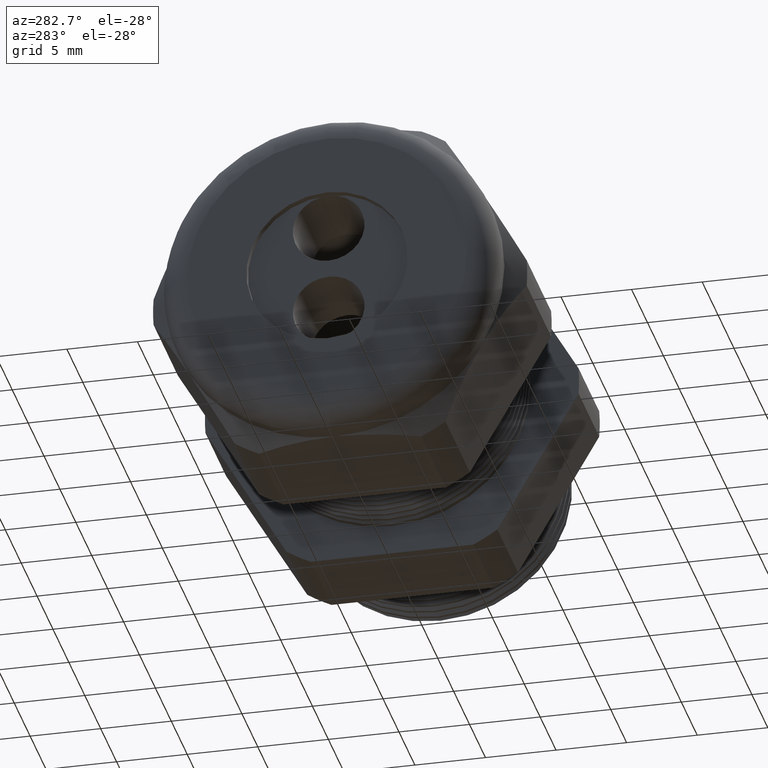
[diagram: clean part render]
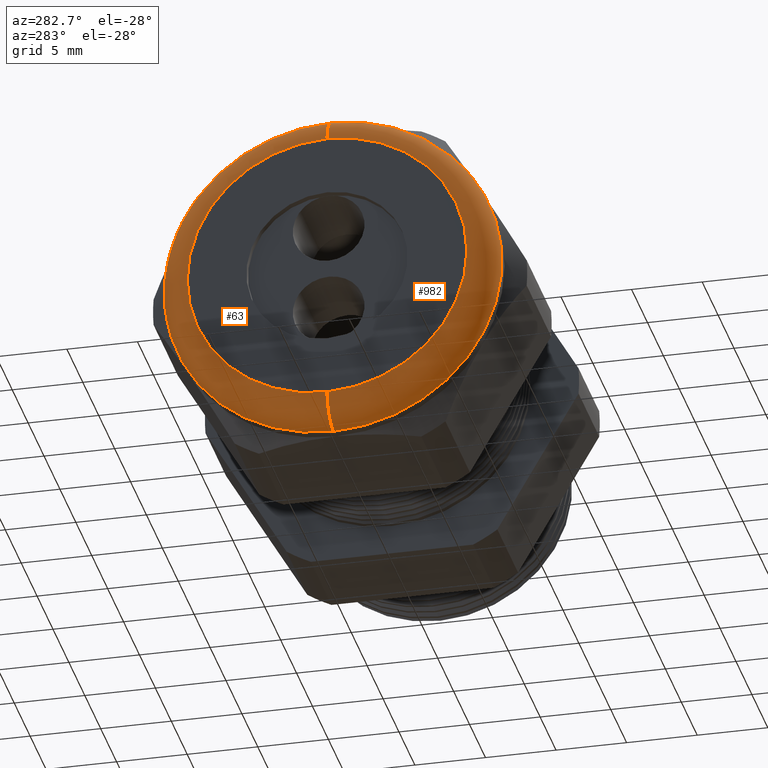
[diagram: same view with one multi-face feature highlighted, each face labeled with its STEP entity id]
A machine part, auxiliary view. The highlighted faces form ONE feature: a constant-radius fillet chain: 2 tangent blend faces with common blend radius 2.032 mm. The faces share edges in the B-rep.
Their STEP definitions:
[1] entity #982 (Torus):
#43 = VERTEX_POINT ( 'NONE', #1557 ) ;
#51 = EDGE_CURVE ( 'NONE', #55, #53, #1541, .T. ) ;
#53 = VERTEX_POINT ( 'NONE', #1593 ) ;
#55 = VERTEX_POINT ( 'NONE', #1592 ) ;
#58 = EDGE_CURVE ( 'NONE', #59, #43, #1586, .T. ) ;
#59 = VERTEX_POINT ( 'NONE', #1581 ) ;
#710 = EDGE_CURVE ( 'NONE', #55, #59, #2927, .T. ) ;
#765 = EDGE_CURVE ( 'NONE', #43, #53, #3015, .T. ) ;
#982 = ADVANCED_FACE ( 'NONE', ( #3413 ), #3410, .T. ) ;
#983 = EDGE_LOOP ( 'NONE', ( #984, #1038, #1039, #1040 ) ) ;
#984 = ORIENTED_EDGE ( 'NONE', *, *, #58, .F. ) ;
#1038 = ORIENTED_EDGE ( 'NONE', *, *, #710, .F. ) ;
#1039 = ORIENTED_EDGE ( 'NONE', *, *, #51, .T. ) ;
#1040 = ORIENTED_EDGE ( 'NONE', *, *, #765, .F. ) ;
#1541 = CIRCLE ( 'NONE', #1603, 0.07999999999999996000 ) ;
#1557 = CARTESIAN_POINT ( 'NONE',  ( -1.370000000000000100, 5.265981236333617600E-017, -0.3899999999999999600 ) ) ;
#1581 = CARTESIAN_POINT ( 'NONE',  ( -1.290000000000000300, 0.0000000000000000000, -0.4699999999999999200 ) ) ;
#1582 = DIRECTION ( 'NONE',  ( 0.0000000000000000000, -1.224646799147353900E-016, 1.000000000000000000 ) ) ;
#1583 = DIRECTION ( 'NONE',  ( 0.0000000000000000000, 1.000000000000000000, 1.224646799147353200E-016 ) ) ;
#1584 = CARTESIAN_POINT ( 'NONE',  ( -1.290000000000000300, 4.776122516674676800E-017, -0.3899999999999999600 ) ) ;
#1585 = AXIS2_PLACEMENT_3D ( 'NONE', #1584, #1583, #1582 ) ;
#1586 = CIRCLE ( 'NONE', #1585, 0.07999999999999996000 ) ;
#1592 = CARTESIAN_POINT ( 'NONE',  ( -1.290000000000000300, 5.755839955992558400E-017, 0.4699999999999999200 ) ) ;
#1593 = CARTESIAN_POINT ( 'NONE',  ( -1.370000000000000100, 0.0000000000000000000, 0.3899999999999999600 ) ) ;
#1600 = DIRECTION ( 'NONE',  ( 0.0000000000000000000, 0.0000000000000000000, -1.000000000000000000 ) ) ;
#1601 = DIRECTION ( 'NONE',  ( 0.0000000000000000000, -1.000000000000000000, 0.0000000000000000000 ) ) ;
#1602 = CARTESIAN_POINT ( 'NONE',  ( -1.290000000000000300, 0.0000000000000000000, 0.3899999999999999600 ) ) ;
#1603 = AXIS2_PLACEMENT_3D ( 'NONE', #1602, #1601, #1600 ) ;
#2923 = DIRECTION ( 'NONE',  ( 0.0000000000000000000, 0.0000000000000000000, 1.000000000000000000 ) ) ;
#2924 = DIRECTION ( 'NONE',  ( 1.000000000000000000, 0.0000000000000000000, 0.0000000000000000000 ) ) ;
#2925 = CARTESIAN_POINT ( 'NONE',  ( -1.290000000000000300, 0.0000000000000000000, 0.0000000000000000000 ) ) ;
#2926 = AXIS2_PLACEMENT_3D ( 'NONE', #2925, #2924, #2923 ) ;
#2927 = CIRCLE ( 'NONE', #2926, 0.4699999999999999200 ) ;
#3014 = AXIS2_PLACEMENT_3D ( 'NONE', #3077, #3076, #3075 ) ;
#3015 = CIRCLE ( 'NONE', #3014, 0.3899999999999999600 ) ;
#3075 = DIRECTION ( 'NONE',  ( 0.0000000000000000000, 0.0000000000000000000, 1.000000000000000000 ) ) ;
#3076 = DIRECTION ( 'NONE',  ( -1.000000000000000000, 0.0000000000000000000, 0.0000000000000000000 ) ) ;
#3077 = CARTESIAN_POINT ( 'NONE',  ( -1.370000000000000100, 0.0000000000000000000, 0.0000000000000000000 ) ) ;
#3407 = DIRECTION ( 'NONE',  ( 0.0000000000000000000, 0.0000000000000000000, 1.000000000000000000 ) ) ;
#3408 = DIRECTION ( 'NONE',  ( -1.000000000000000000, 0.0000000000000000000, 0.0000000000000000000 ) ) ;
#3409 = AXIS2_PLACEMENT_3D ( 'NONE', #3412, #3408, #3407 ) ;
#3410 = TOROIDAL_SURFACE ( 'NONE', #3409, 0.3899999999999999600, 0.08000000000000000200 ) ;
#3412 = CARTESIAN_POINT ( 'NONE',  ( -1.290000000000000300, 0.0000000000000000000, 0.0000000000000000000 ) ) ;
#3413 = FACE_OUTER_BOUND ( 'NONE', #983, .T. ) ;
[2] entity #63 (Torus):
#34 = EDGE_LOOP ( 'NONE', ( #61, #54, #56, #50 ) ) ;
#43 = VERTEX_POINT ( 'NONE', #1557 ) ;
#50 = ORIENTED_EDGE ( 'NONE', *, *, #51, .F. ) ;
#51 = EDGE_CURVE ( 'NONE', #55, #53, #1541, .T. ) ;
#53 = VERTEX_POINT ( 'NONE', #1593 ) ;
#54 = ORIENTED_EDGE ( 'NONE', *, *, #58, .T. ) ;
#55 = VERTEX_POINT ( 'NONE', #1592 ) ;
#56 = ORIENTED_EDGE ( 'NONE', *, *, #57, .F. ) ;
#57 = EDGE_CURVE ( 'NONE', #53, #43, #1591, .T. ) ;
#58 = EDGE_CURVE ( 'NONE', #59, #43, #1586, .T. ) ;
#59 = VERTEX_POINT ( 'NONE', #1581 ) ;
#60 = EDGE_CURVE ( 'NONE', #59, #55, #1579, .T. ) ;
#61 = ORIENTED_EDGE ( 'NONE', *, *, #60, .F. ) ;
#63 = ADVANCED_FACE ( 'NONE', ( #1580 ), #1573, .T. ) ;
#1541 = CIRCLE ( 'NONE', #1603, 0.07999999999999996000 ) ;
#1557 = CARTESIAN_POINT ( 'NONE',  ( -1.370000000000000100, 5.265981236333617600E-017, -0.3899999999999999600 ) ) ;
#1570 = DIRECTION ( 'NONE',  ( 0.0000000000000000000, 0.0000000000000000000, 1.000000000000000000 ) ) ;
#1571 = DIRECTION ( 'NONE',  ( -1.000000000000000000, 0.0000000000000000000, 0.0000000000000000000 ) ) ;
#1572 = AXIS2_PLACEMENT_3D ( 'NONE', #1574, #1571, #1570 ) ;
#1573 = TOROIDAL_SURFACE ( 'NONE', #1572, 0.3899999999999999600, 0.08000000000000000200 ) ;
#1574 = CARTESIAN_POINT ( 'NONE',  ( -1.290000000000000300, 0.0000000000000000000, 0.0000000000000000000 ) ) ;
#1575 = DIRECTION ( 'NONE',  ( 0.0000000000000000000, 0.0000000000000000000, 1.000000000000000000 ) ) ;
#1576 = DIRECTION ( 'NONE',  ( 1.000000000000000000, 0.0000000000000000000, 0.0000000000000000000 ) ) ;
#1577 = CARTESIAN_POINT ( 'NONE',  ( -1.290000000000000300, 0.0000000000000000000, 0.0000000000000000000 ) ) ;
#1578 = AXIS2_PLACEMENT_3D ( 'NONE', #1577, #1576, #1575 ) ;
#1579 = CIRCLE ( 'NONE', #1578, 0.4699999999999999200 ) ;
#1580 = FACE_OUTER_BOUND ( 'NONE', #34, .T. ) ;
#1581 = CARTESIAN_POINT ( 'NONE',  ( -1.290000000000000300, 0.0000000000000000000, -0.4699999999999999200 ) ) ;
#1582 = DIRECTION ( 'NONE',  ( 0.0000000000000000000, -1.224646799147353900E-016, 1.000000000000000000 ) ) ;
#1583 = DIRECTION ( 'NONE',  ( 0.0000000000000000000, 1.000000000000000000, 1.224646799147353200E-016 ) ) ;
#1584 = CARTESIAN_POINT ( 'NONE',  ( -1.290000000000000300, 4.776122516674676800E-017, -0.3899999999999999600 ) ) ;
#1585 = AXIS2_PLACEMENT_3D ( 'NONE', #1584, #1583, #1582 ) ;
#1586 = CIRCLE ( 'NONE', #1585, 0.07999999999999996000 ) ;
#1587 = DIRECTION ( 'NONE',  ( 0.0000000000000000000, 0.0000000000000000000, 1.000000000000000000 ) ) ;
#1588 = DIRECTION ( 'NONE',  ( -1.000000000000000000, 0.0000000000000000000, 0.0000000000000000000 ) ) ;
#1589 = CARTESIAN_POINT ( 'NONE',  ( -1.370000000000000100, 0.0000000000000000000, 0.0000000000000000000 ) ) ;
#1590 = AXIS2_PLACEMENT_3D ( 'NONE', #1589, #1588, #1587 ) ;
#1591 = CIRCLE ( 'NONE', #1590, 0.3899999999999999600 ) ;
#1592 = CARTESIAN_POINT ( 'NONE',  ( -1.290000000000000300, 5.755839955992558400E-017, 0.4699999999999999200 ) ) ;
#1593 = CARTESIAN_POINT ( 'NONE',  ( -1.370000000000000100, 0.0000000000000000000, 0.3899999999999999600 ) ) ;
#1600 = DIRECTION ( 'NONE',  ( 0.0000000000000000000, 0.0000000000000000000, -1.000000000000000000 ) ) ;
#1601 = DIRECTION ( 'NONE',  ( 0.0000000000000000000, -1.000000000000000000, 0.0000000000000000000 ) ) ;
#1602 = CARTESIAN_POINT ( 'NONE',  ( -1.290000000000000300, 0.0000000000000000000, 0.3899999999999999600 ) ) ;
#1603 = AXIS2_PLACEMENT_3D ( 'NONE', #1602, #1601, #1600 ) ;